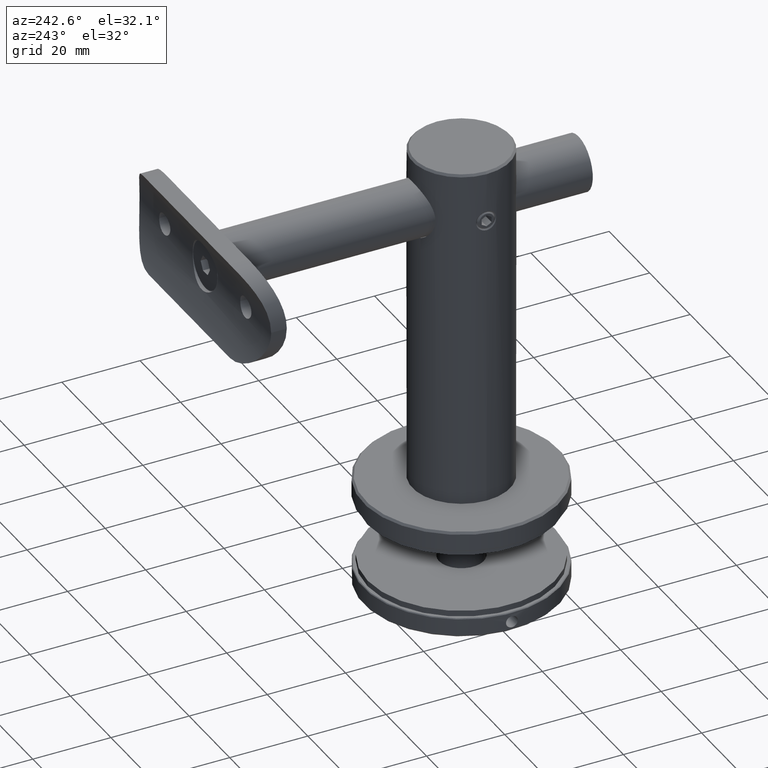
[diagram: clean part render]
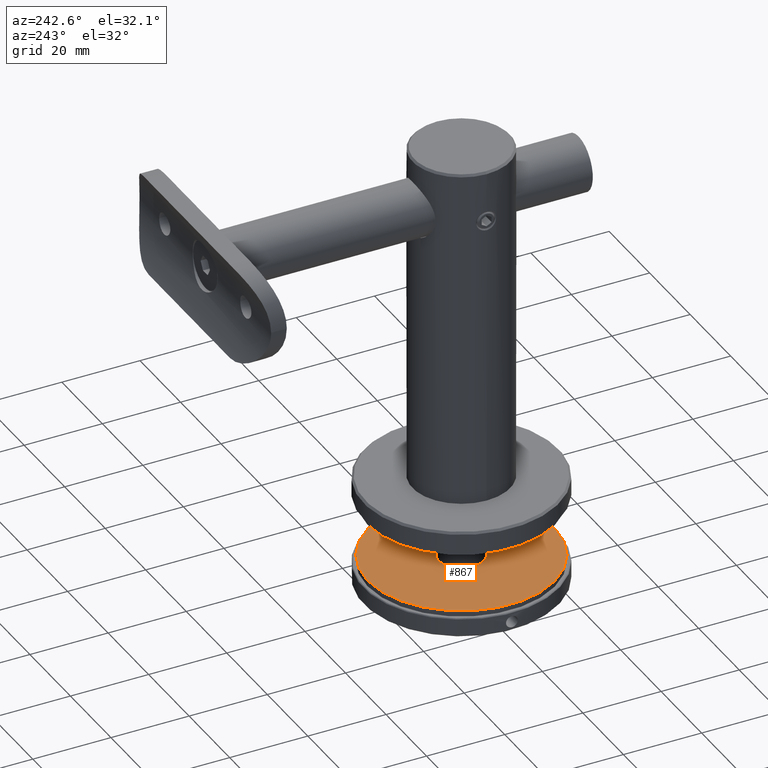
[diagram: same view with one face highlighted and labeled with its STEP entity id]
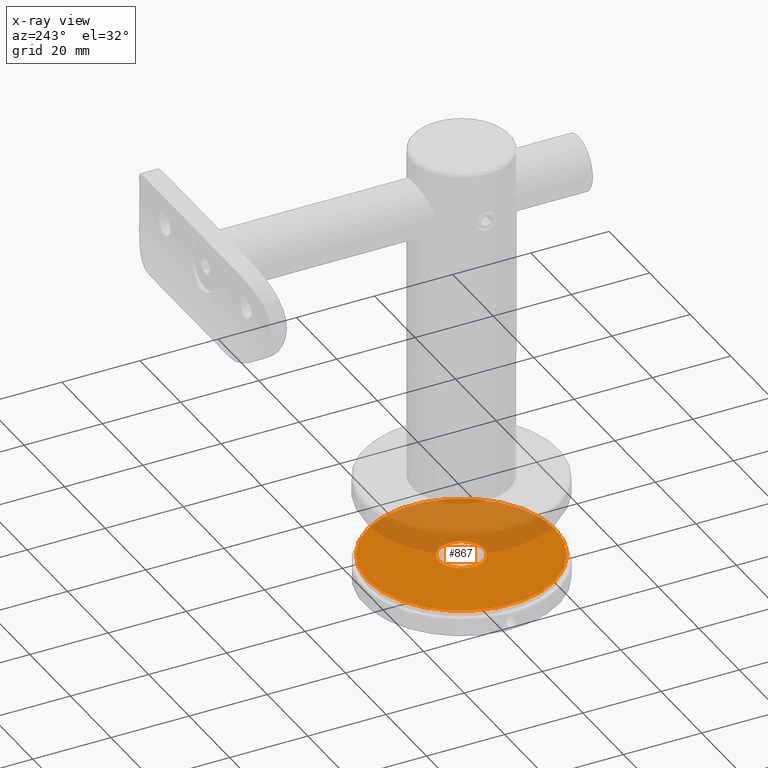
[diagram: x-ray of the same camera — body ghosted, the highlighted face saturated]
A machine part, auxiliary view. The second image highlights one B-rep face of the part: STEP entity #867.
The next image is the same camera in x-ray: the body ghosted, the highlighted face saturated — about 38% of this face is hidden behind the body in this view.
In plain terms, the highlighted planar face has unit normal (0, 0, -1).
Its self-contained STEP definition (entity closure, byte-faithful):
#230 = DIRECTION ( 'NONE',  ( 0.0000000000000000000, -0.0000000000000000000, 1.000000000000000000 ) ) ;
#867 = ADVANCED_FACE ( 'NONE', ( #19373, #7272 ), #17263, .F. ) ;
#2505 = CARTESIAN_POINT ( 'NONE',  ( 0.0000000000000000000, 0.0000000000000000000, 0.0000000000000000000 ) ) ;
#3901 = DIRECTION ( 'NONE',  ( 0.0000000000000000000, 1.000000000000000000, 0.0000000000000000000 ) ) ;
#6180 = AXIS2_PLACEMENT_3D ( 'NONE', #2505, #3901, #13563 ) ;
#6715 = CARTESIAN_POINT ( 'NONE',  ( 0.0000000000000000000, 0.0000000000000000000, 24.00000000000000400 ) ) ;
#7272 = FACE_BOUND ( 'NONE', #20303, .T. ) ;
#9533 = DIRECTION ( 'NONE',  ( 0.0000000000000000000, 1.000000000000000000, 0.0000000000000000000 ) ) ;
#9598 = CARTESIAN_POINT ( 'NONE',  ( 0.0000000000000000000, 0.0000000000000000000, 0.0000000000000000000 ) ) ;
#10414 = AXIS2_PLACEMENT_3D ( 'NONE', #16333, #18156, #13164 ) ;
#11816 = AXIS2_PLACEMENT_3D ( 'NONE', #9598, #9533, #230 ) ;
#13164 = DIRECTION ( 'NONE',  ( 0.0000000000000000000, 0.0000000000000000000, 1.000000000000000000 ) ) ;
#13563 = DIRECTION ( 'NONE',  ( 0.0000000000000000000, 0.0000000000000000000, 1.000000000000000000 ) ) ;
#13842 = ORIENTED_EDGE ( 'NONE', *, *, #14403, .T. ) ;
#14403 = EDGE_CURVE ( 'NONE', #16741, #16741, #15216, .T. ) ;
#14946 = CIRCLE ( 'NONE', #10414, 24.00000000000000400 ) ;
#15216 = CIRCLE ( 'NONE', #6180, 5.750000000000000000 ) ;
#15273 = ORIENTED_EDGE ( 'NONE', *, *, #15600, .F. ) ;
#15600 = EDGE_CURVE ( 'NONE', #17947, #17947, #14946, .T. ) ;
#16333 = CARTESIAN_POINT ( 'NONE',  ( 0.0000000000000000000, 0.0000000000000000000, 0.0000000000000000000 ) ) ;
#16741 = VERTEX_POINT ( 'NONE', #19244 ) ;
#17263 = PLANE ( 'NONE',  #11816 ) ;
#17947 = VERTEX_POINT ( 'NONE', #6715 ) ;
#18156 = DIRECTION ( 'NONE',  ( 0.0000000000000000000, 1.000000000000000000, 0.0000000000000000000 ) ) ;
#19244 = CARTESIAN_POINT ( 'NONE',  ( 0.0000000000000000000, 0.0000000000000000000, 5.750000000000000000 ) ) ;
#19373 = FACE_OUTER_BOUND ( 'NONE', #20524, .T. ) ;
#20303 = EDGE_LOOP ( 'NONE', ( #13842 ) ) ;
#20524 = EDGE_LOOP ( 'NONE', ( #15273 ) ) ;